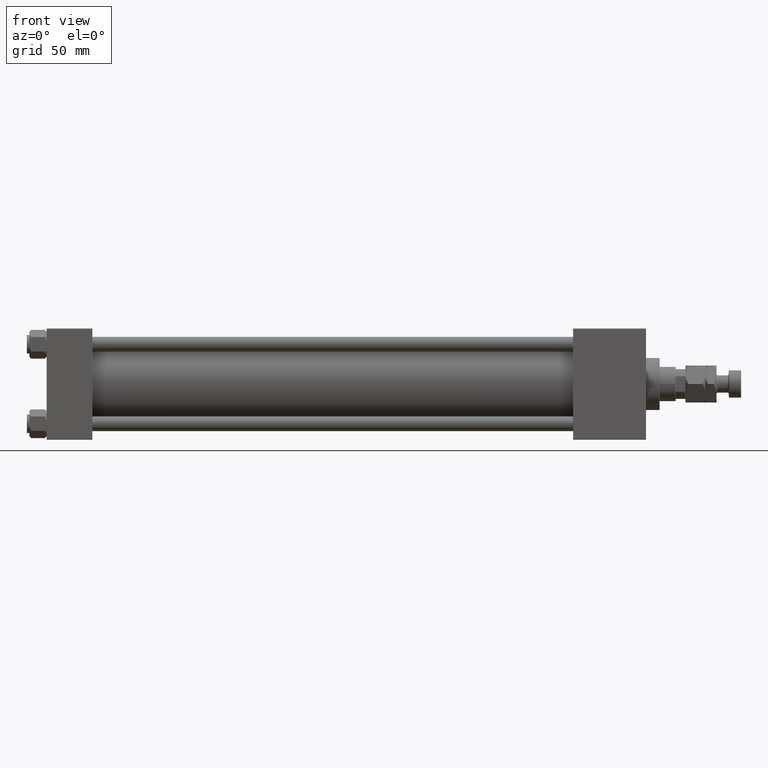
[diagram: clean part render]
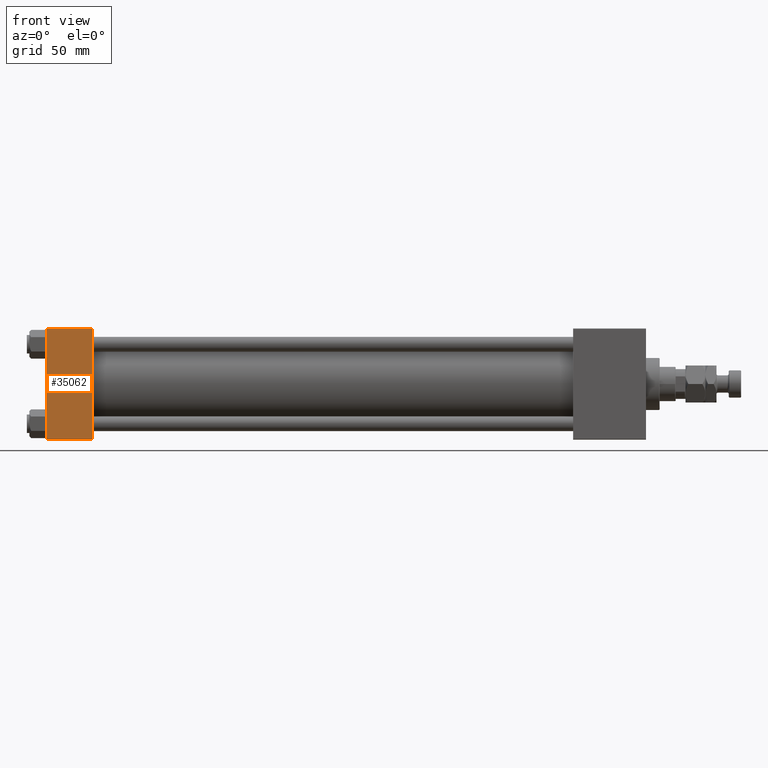
[diagram: same view with one face highlighted and labeled with its STEP entity id]
A machine part, front view. The second image highlights one B-rep face of the part: STEP entity #35062.
In plain terms, the highlighted planar face has unit normal (0, 1, 0).
Its self-contained STEP definition (entity closure, byte-faithful):
#419 = VECTOR ( 'NONE', #31276, 1000.000000000000000 ) ;
#5771 = CARTESIAN_POINT ( 'NONE',  ( 37.00000000000000000, -45.00000000000000000, -44.49999999999995737 ) ) ;
#6202 = LINE ( 'NONE', #22281, #27882 ) ;
#6506 = VECTOR ( 'NONE', #39875, 1000.000000000000000 ) ;
#7480 = EDGE_CURVE ( 'NONE', #16522, #44144, #19580, .T. ) ;
#11868 = CARTESIAN_POINT ( 'NONE',  ( 0.000000000000000000, -45.00000000000000000, -44.49999999999995737 ) ) ;
#15187 = ORIENTED_EDGE ( 'NONE', *, *, #7480, .T. ) ;
#15475 = AXIS2_PLACEMENT_3D ( 'NONE', #30702, #30437, #34902 ) ;
#15621 = CARTESIAN_POINT ( 'NONE',  ( 0.000000000000000000, -45.00000000000000711, 44.49999999999997158 ) ) ;
#15879 = DIRECTION ( 'NONE',  ( 0.000000000000000000, 7.709882115452476934E-17, -1.000000000000000000 ) ) ;
#16252 = CARTESIAN_POINT ( 'NONE',  ( 37.00000000000000000, -45.00000000000000000, -44.49999999999998579 ) ) ;
#16522 = VERTEX_POINT ( 'NONE', #15621 ) ;
#18863 = LINE ( 'NONE', #23821, #6506 ) ;
#19580 = LINE ( 'NONE', #51947, #36757 ) ;
#20074 = ORIENTED_EDGE ( 'NONE', *, *, #28848, .F. ) ;
#22281 = CARTESIAN_POINT ( 'NONE',  ( 37.00000000000000000, -45.00000000000000711, 45.00000000000000000 ) ) ;
#23634 = LINE ( 'NONE', #16252, #419 ) ;
#23821 = CARTESIAN_POINT ( 'NONE',  ( 37.00000000000000000, -45.00000000000000711, 44.49999999999997158 ) ) ;
#26469 = DIRECTION ( 'NONE',  ( 0.000000000000000000, 7.709882115452476934E-17, -1.000000000000000000 ) ) ;
#27882 = VECTOR ( 'NONE', #26469, 1000.000000000000000 ) ;
#28848 = EDGE_CURVE ( 'NONE', #48825, #33738, #6202, .T. ) ;
#30437 = DIRECTION ( 'NONE',  ( -0.000000000000000000, 1.000000000000000000, 7.709882115452478166E-17 ) ) ;
#30702 = CARTESIAN_POINT ( 'NONE',  ( 37.00000000000000000, -45.00000000000000711, 45.00000000000000000 ) ) ;
#31034 = CARTESIAN_POINT ( 'NONE',  ( 37.00000000000000000, -45.00000000000000711, 44.49999999999997158 ) ) ;
#31276 = DIRECTION ( 'NONE',  ( 1.000000000000000000, 0.000000000000000000, 0.000000000000000000 ) ) ;
#33738 = VERTEX_POINT ( 'NONE', #5771 ) ;
#34360 = ORIENTED_EDGE ( 'NONE', *, *, #42322, .T. ) ;
#34902 = DIRECTION ( 'NONE',  ( 0.000000000000000000, -7.709882115452478166E-17, 1.000000000000000000 ) ) ;
#35062 = ADVANCED_FACE ( 'NONE', ( #46775 ), #47034, .F. ) ;
#36757 = VECTOR ( 'NONE', #15879, 1000.000000000000000 ) ;
#38561 = EDGE_LOOP ( 'NONE', ( #15187, #34360, #20074, #38957 ) ) ;
#38957 = ORIENTED_EDGE ( 'NONE', *, *, #50736, .T. ) ;
#39875 = DIRECTION ( 'NONE',  ( -1.000000000000000000, 0.000000000000000000, 0.000000000000000000 ) ) ;
#42322 = EDGE_CURVE ( 'NONE', #44144, #33738, #23634, .T. ) ;
#44144 = VERTEX_POINT ( 'NONE', #11868 ) ;
#46775 = FACE_OUTER_BOUND ( 'NONE', #38561, .T. ) ;
#47034 = PLANE ( 'NONE',  #15475 ) ;
#48825 = VERTEX_POINT ( 'NONE', #31034 ) ;
#50736 = EDGE_CURVE ( 'NONE', #48825, #16522, #18863, .T. ) ;
#51947 = CARTESIAN_POINT ( 'NONE',  ( 0.000000000000000000, -45.00000000000000711, 45.00000000000000000 ) ) ;